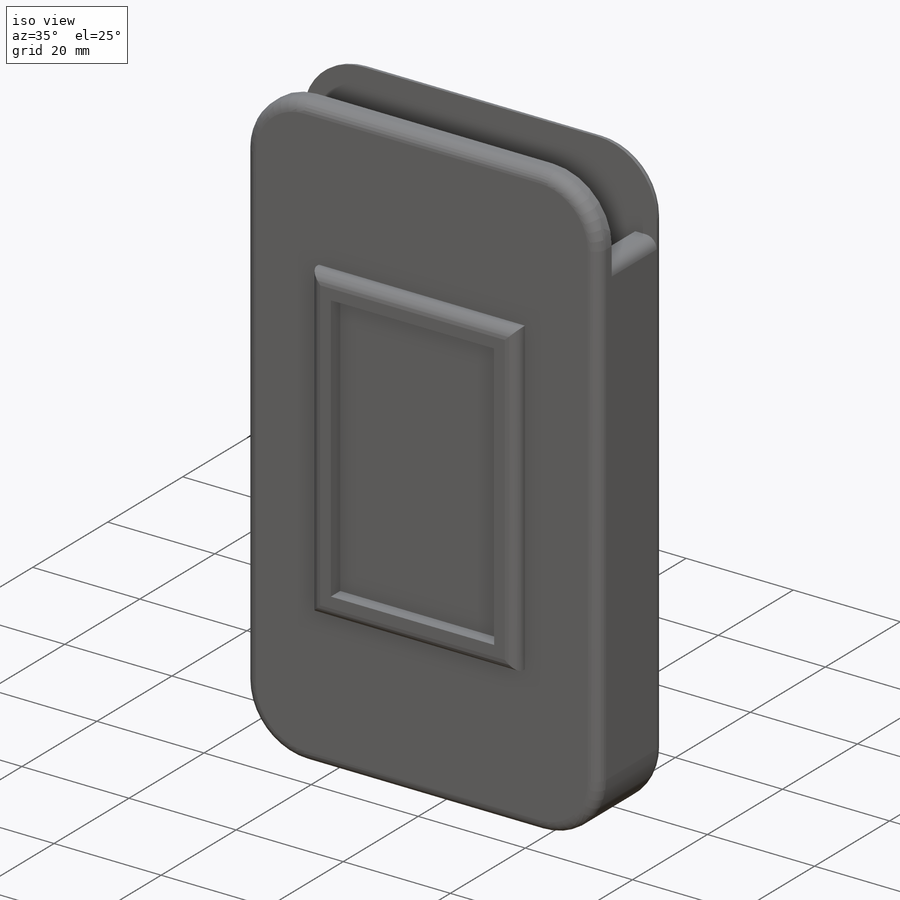
[diagram: iso view]
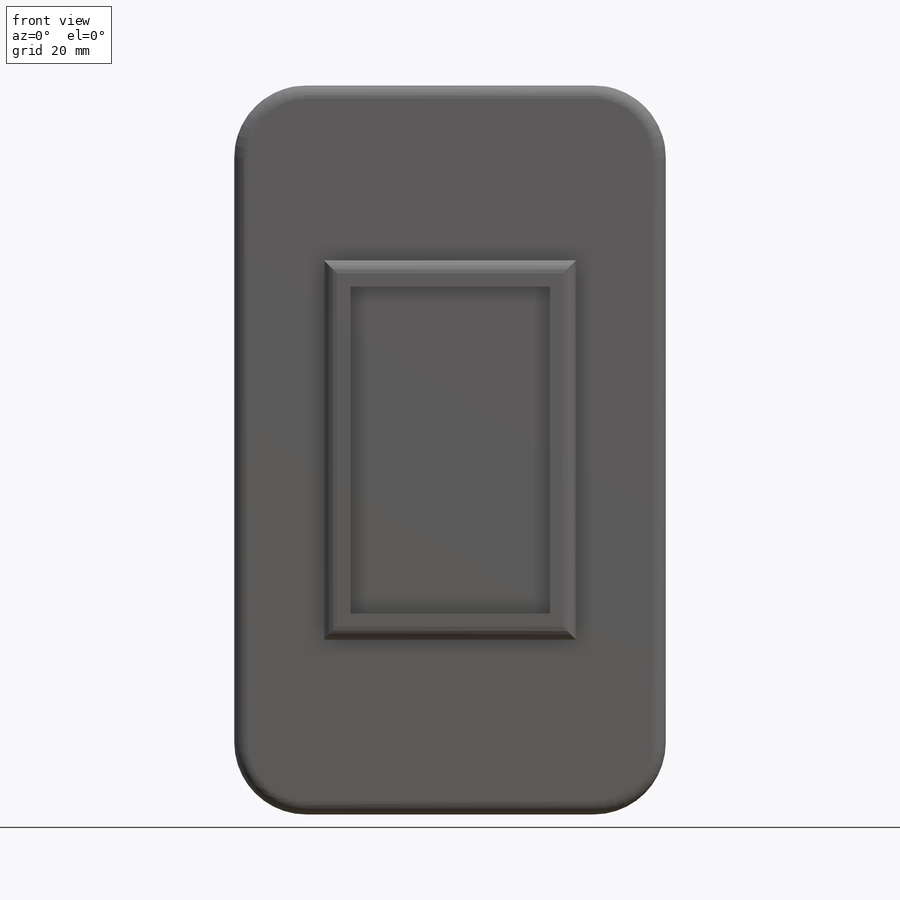
[diagram: front view]
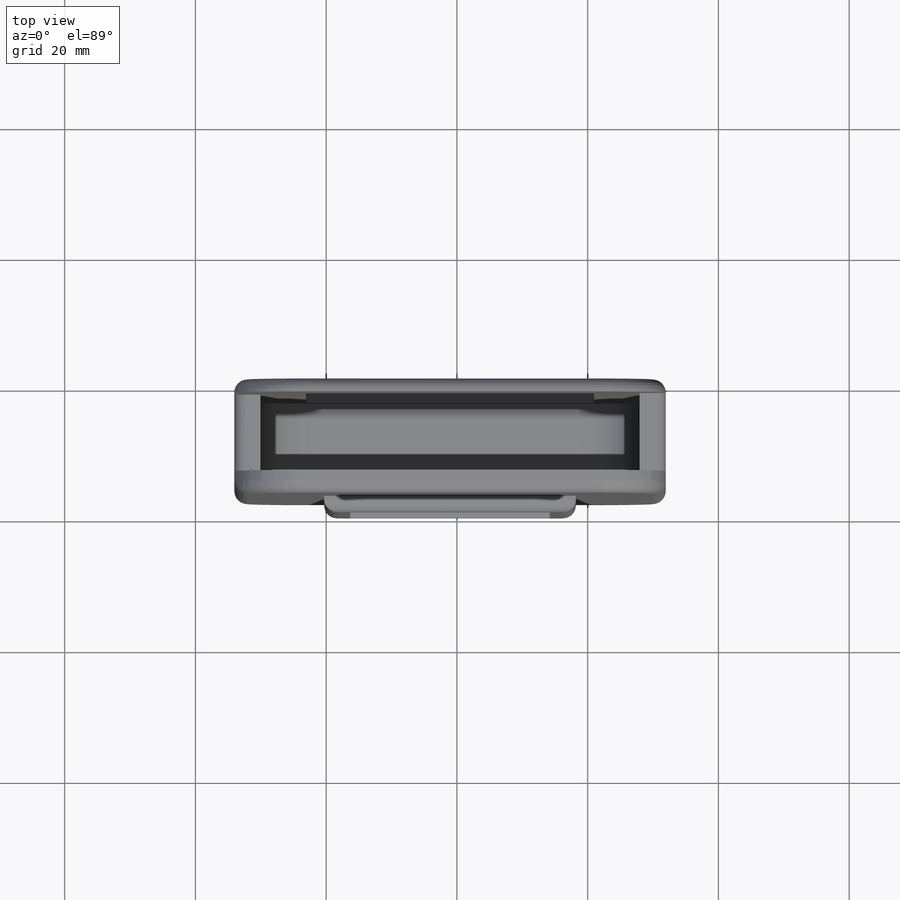
[diagram: top view]
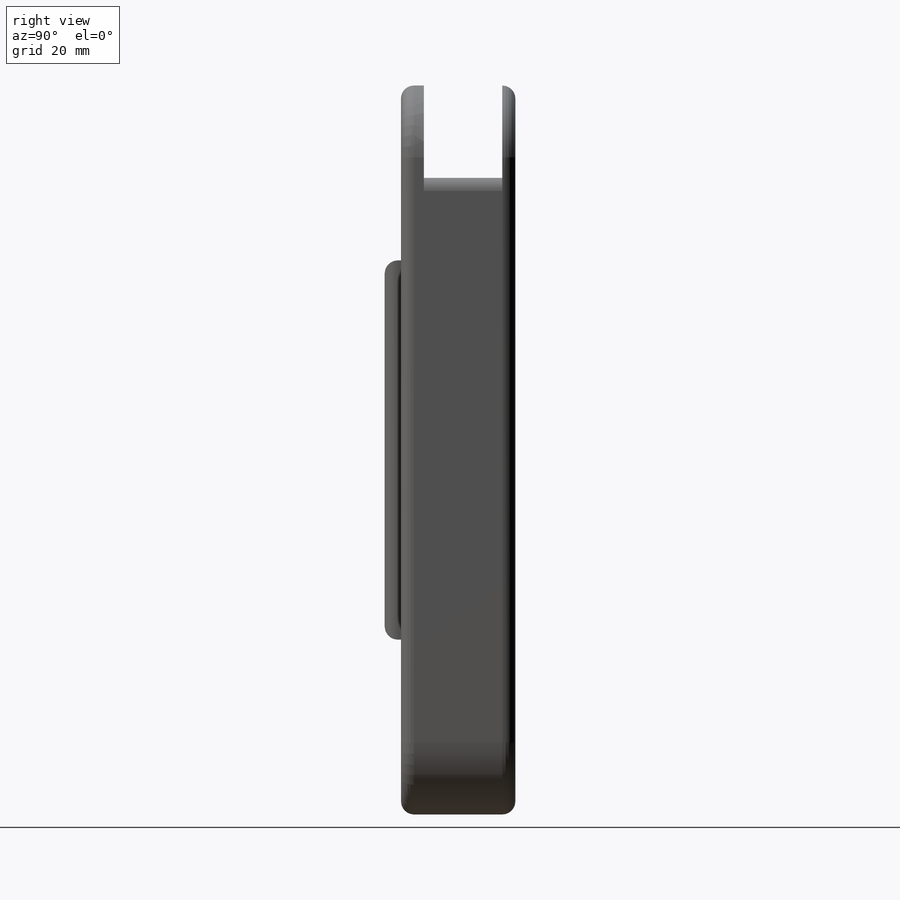
[diagram: right view]
SOLIDWORKS PART (.sldprt)
format: sldprt  version: not decoded by parser v0  size: 371,200 bytes
history: native  units: mm
features: sketch x6, fillet x5, extrude x4, plane x3, material x1, cut_extrude x1 (+9 scaffold rows collapsed)
feature tree (29):
  scaffold x9  (default folders/planes/origin — collapsed)
  material  "Material <sin especificar>"
  plane  "Alzado"
  plane  "Planta"
  plane  "Vista lateral"
  sketch  "Croquis1"  dims[c1.D1=78.5mm c1.D2=44.0mm c2.D1=78.5mm c2.D2=44.0mm]
  extrude  "Saliente-Extruir1"  Depth=2mm
  sketch  "Croquis2"  dims[D1=78.5mm D2=44.0mm]
  extrude  "Saliente-Extruir2"  Depth=12mm
  sketch  "Croquis3"  dims[D1=78.5mm D2=44.0mm]
  extrude  "Saliente-Extruir3"  Depth=3.5mm
  sketch  "Croquis4"  dims[c1.D1=25.0mm c1.D2=25.0mm c1.D3=15.25mm c1.D4=15.25mm c2.D1=50.0mm c2.D2=15.25mm c3.D1=30.5mm c3.D2=50.0mm c3.D3=30.75mm c3.D4=17.75mm c3.D5=4.0mm c3.D6=4.0mm c3.D7=4.0mm c3.D8=4.0mm]
  extrude  "Saliente-Extruir4"  Depth=2.5mm
  sketch  "Croquis5"  dims[D1=7.0mm]
  sketch  "Croquis6"  dims[D1=~14.873801mm]
  cut_extrude  "Cortar-Extruir3"  Depth=4mm
  fillet  "Redondeo2"  Radius=2mm
  fillet  "Redondeo3"  Radius=2mm
  fillet  "Redondeo4"  Radius=2mm
  fillet  "Redondeo5"  Radius=2mm
  fillet  "Redondeo6"  Radius=2mm
decode coverage: 16 of 16 modeling features carry decoded parameters
note: ~ marks probable driven/reference dimensions
note: suppression state not decoded; provenance and decode notes live in map.json
